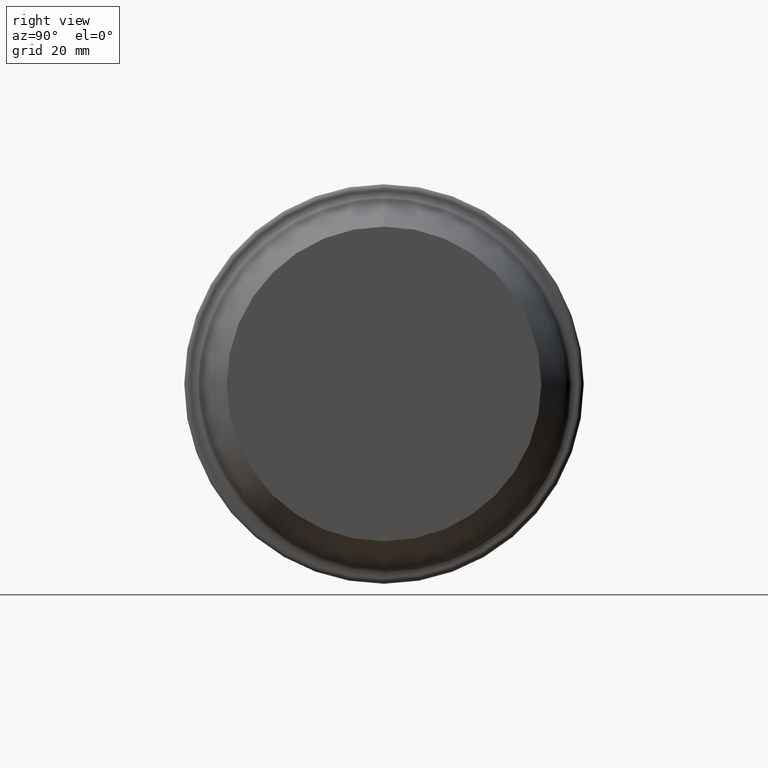
[diagram: clean part render]
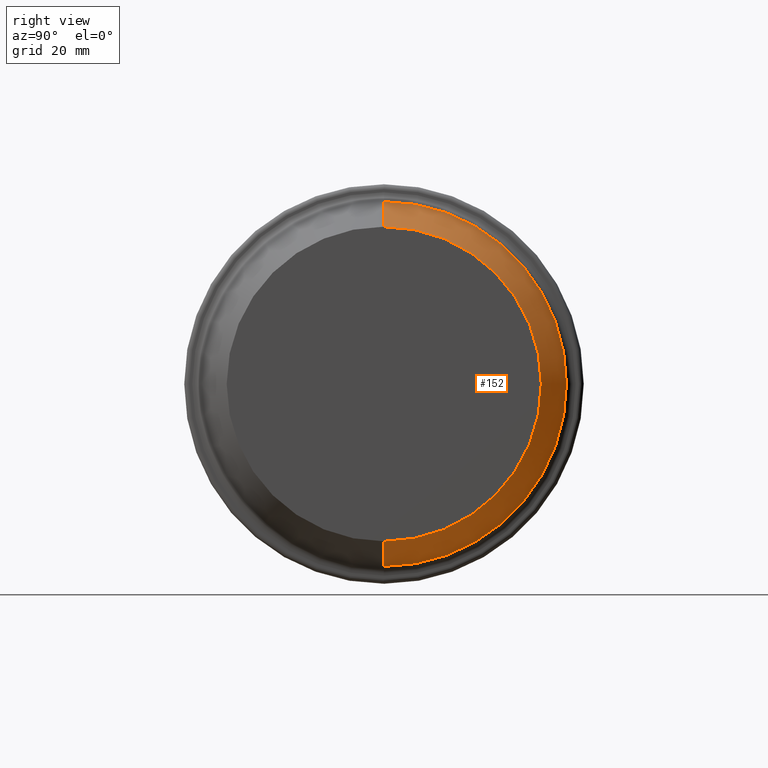
[diagram: same view with one face highlighted and labeled with its STEP entity id]
A machine part, right view. The second image highlights one B-rep face of the part: STEP entity #152.
In plain terms, the highlighted conical surface has half-angle 20.136 deg.
Its self-contained STEP definition (entity closure, byte-faithful):
#6 = DIRECTION ( 'NONE',  ( -1.000000000000000000, 0.000000000000000000, 0.000000000000000000 ) ) ;
#10 = EDGE_CURVE ( 'NONE', #229, #361, #404, .T. ) ;
#15 = EDGE_LOOP ( 'NONE', ( #465, #521, #59, #193 ) ) ;
#24 = VERTEX_POINT ( 'NONE', #461 ) ;
#59 = ORIENTED_EDGE ( 'NONE', *, *, #10, .F. ) ;
#70 = DIRECTION ( 'NONE',  ( 0.000000000000000000, 0.000000000000000000, 1.000000000000000000 ) ) ;
#84 = AXIS2_PLACEMENT_3D ( 'NONE', #537, #108, #118 ) ;
#86 = EDGE_CURVE ( 'NONE', #24, #361, #491, .T. ) ;
#100 = CONICAL_SURFACE ( 'NONE', #292, 31.49999997253168615, 0.3514447942182064577 ) ;
#103 = LINE ( 'NONE', #264, #135 ) ;
#108 = DIRECTION ( 'NONE',  ( -1.000000000000000000, 0.000000000000000000, 0.000000000000000000 ) ) ;
#109 = CARTESIAN_POINT ( 'NONE',  ( 31.31149067075369885, 4.472302306960778562E-15, -36.51911971741218821 ) ) ;
#118 = DIRECTION ( 'NONE',  ( 0.000000000000000000, 0.000000000000000000, 1.000000000000000000 ) ) ;
#125 = EDGE_CURVE ( 'NONE', #523, #24, #341, .T. ) ;
#128 = CARTESIAN_POINT ( 'NONE',  ( 44.99999905679140966, 0.000000000000000000, 0.000000000000000000 ) ) ;
#135 = VECTOR ( 'NONE', #360, 1000.000000000000114 ) ;
#152 = ADVANCED_FACE ( 'NONE', ( #203 ), #100, .T. ) ;
#193 = ORIENTED_EDGE ( 'NONE', *, *, #536, .F. ) ;
#196 = DIRECTION ( 'NONE',  ( -0.9388763158127126918, 4.215903544302657571E-17, -0.3442546493599574209 ) ) ;
#203 = FACE_OUTER_BOUND ( 'NONE', #15, .T. ) ;
#229 = VERTEX_POINT ( 'NONE', #303 ) ;
#248 = DIRECTION ( 'NONE',  ( 0.000000000000000000, 0.000000000000000000, 1.000000000000000000 ) ) ;
#264 = CARTESIAN_POINT ( 'NONE',  ( 44.99999905679140966, 0.000000000000000000, 31.49999997253168615 ) ) ;
#292 = AXIS2_PLACEMENT_3D ( 'NONE', #128, #6, #248 ) ;
#303 = CARTESIAN_POINT ( 'NONE',  ( 31.31149067075369885, 0.000000000000000000, 36.51911971741218821 ) ) ;
#318 = DIRECTION ( 'NONE',  ( -1.000000000000000000, 0.000000000000000000, 0.000000000000000000 ) ) ;
#341 = CIRCLE ( 'NONE', #416, 31.49999997253168615 ) ;
#360 = DIRECTION ( 'NONE',  ( -0.9388763158127126918, 0.000000000000000000, 0.3442546493599574209 ) ) ;
#361 = VERTEX_POINT ( 'NONE', #109 ) ;
#373 = CARTESIAN_POINT ( 'NONE',  ( 44.99999905679140966, 3.857637413950260996E-15, -31.49999997253168615 ) ) ;
#404 = CIRCLE ( 'NONE', #84, 36.51911971741218821 ) ;
#416 = AXIS2_PLACEMENT_3D ( 'NONE', #487, #318, #70 ) ;
#461 = CARTESIAN_POINT ( 'NONE',  ( 44.99999905679140966, 4.164969860455517807E-15, -31.49999997253168615 ) ) ;
#465 = ORIENTED_EDGE ( 'NONE', *, *, #125, .T. ) ;
#481 = VECTOR ( 'NONE', #196, 1000.000000000000114 ) ;
#482 = CARTESIAN_POINT ( 'NONE',  ( 44.99999905679140966, 0.000000000000000000, 31.49999997253168615 ) ) ;
#487 = CARTESIAN_POINT ( 'NONE',  ( 44.99999905679140966, 0.000000000000000000, 0.000000000000000000 ) ) ;
#491 = LINE ( 'NONE', #373, #481 ) ;
#521 = ORIENTED_EDGE ( 'NONE', *, *, #86, .T. ) ;
#523 = VERTEX_POINT ( 'NONE', #482 ) ;
#536 = EDGE_CURVE ( 'NONE', #523, #229, #103, .T. ) ;
#537 = CARTESIAN_POINT ( 'NONE',  ( 31.31149067075369885, 0.000000000000000000, 0.000000000000000000 ) ) ;